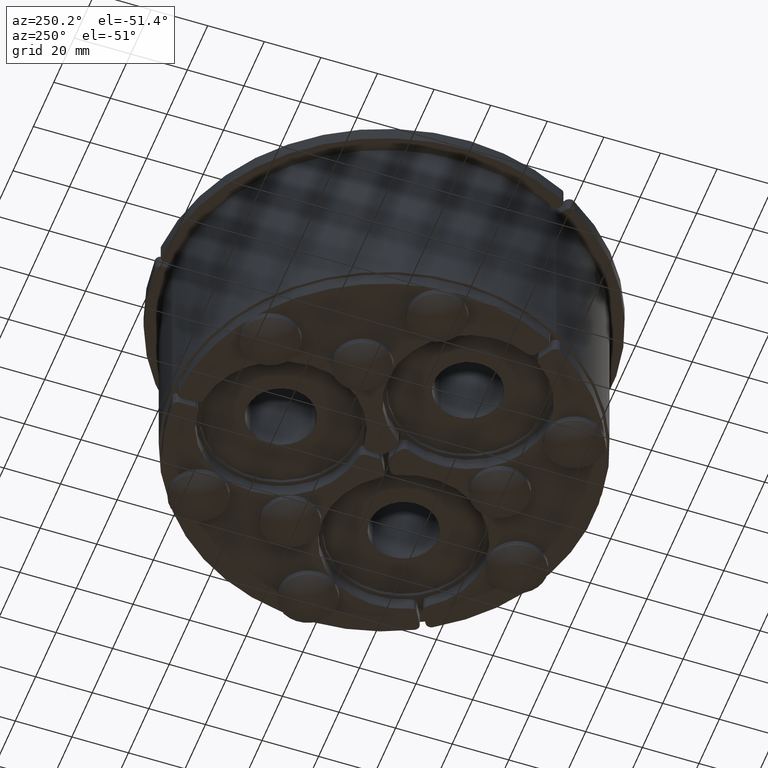
[diagram: clean part render]
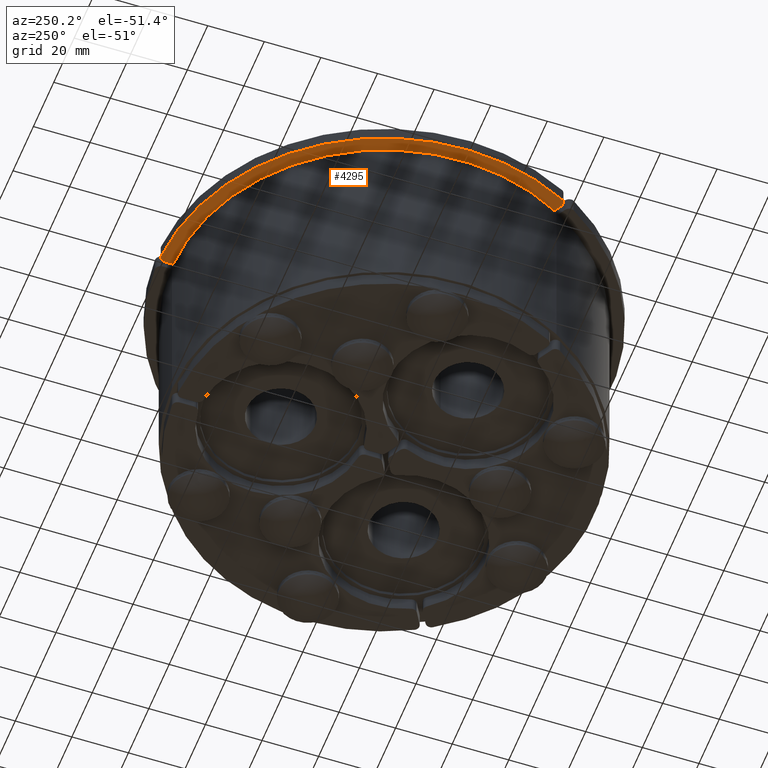
[diagram: same view with one face highlighted and labeled with its STEP entity id]
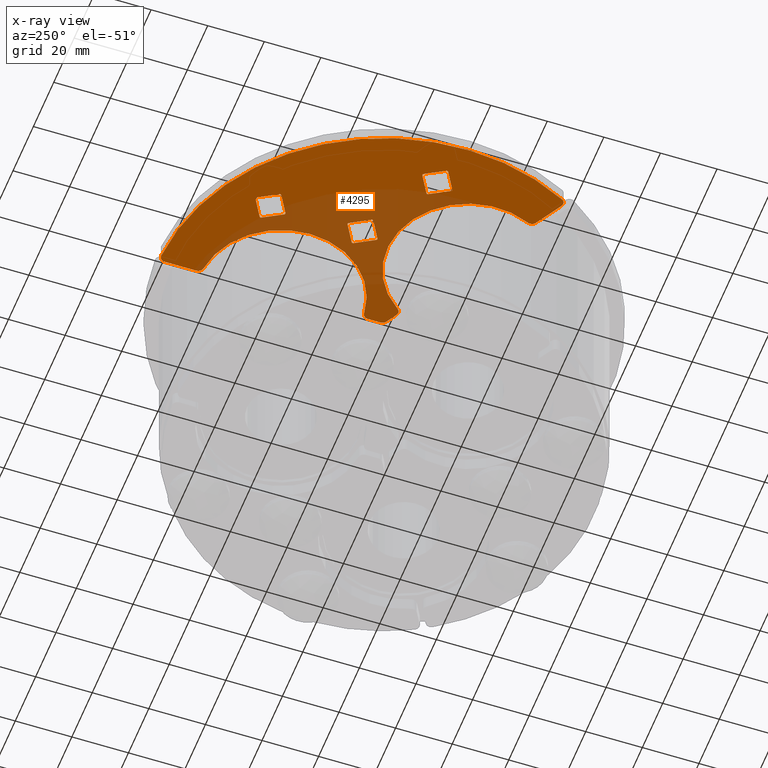
[diagram: x-ray of the same camera — body ghosted, the highlighted face saturated]
A machine part, auxiliary view. The second image highlights one B-rep face of the part: STEP entity #4295.
The next image is the same camera in x-ray: the body ghosted, the highlighted face saturated — about 33% of this face is hidden behind the body in this view.
In plain terms, the highlighted planar face has unit normal (0, 0, 1).
Its self-contained STEP definition (entity closure, byte-faithful):
#3317=CARTESIAN_POINT('',(32.029327736417841,-61.366536972386818,0.0));
#3318=VERTEX_POINT('',#3317);
#3319=CARTESIAN_POINT('',(32.529327736417841,-60.866536972386839,0.0));
#3320=VERTEX_POINT('',#3319);
#3321=CARTESIAN_POINT('',(32.029327736417848,-60.866536972386825,0.0));
#3322=DIRECTION('',(0.0,0.0,1.0));
#3323=DIRECTION('',(0.0,-1.0,0.0));
#3324=AXIS2_PLACEMENT_3D('',#3321,#3322,#3323);
#3325=CIRCLE('',#3324,0.499999999999996);
#3326=EDGE_CURVE('',#3318,#3320,#3325,.T.);
#3359=CARTESIAN_POINT('',(32.529327736417841,-53.166536972386794,0.0));
#3360=VERTEX_POINT('',#3359);
#3361=CARTESIAN_POINT('',(32.529327736417841,-60.866536972386839,0.0));
#3362=DIRECTION('',(0.0,1.0,0.0));
#3363=VECTOR('',#3362,7.700000000000046);
#3364=LINE('',#3361,#3363);
#3365=EDGE_CURVE('',#3320,#3360,#3364,.T.);
#3390=CARTESIAN_POINT('',(32.029327736417841,-52.666536972386808,0.0));
#3391=VERTEX_POINT('',#3390);
#3392=CARTESIAN_POINT('',(32.029327736417848,-53.166536972386794,0.0));
#3393=DIRECTION('',(0.0,0.0,1.0));
#3394=DIRECTION('',(1.0,0.0,0.0));
#3395=AXIS2_PLACEMENT_3D('',#3392,#3393,#3394);
#3396=CIRCLE('',#3395,0.500000000000003);
#3397=EDGE_CURVE('',#3360,#3391,#3396,.T.);
#3423=CARTESIAN_POINT('',(24.329327736417838,-52.666536972386808,0.0));
#3424=VERTEX_POINT('',#3423);
#3425=CARTESIAN_POINT('',(32.029327736417841,-52.666536972386808,0.0));
#3426=DIRECTION('',(-1.0,0.0,0.0));
#3427=VECTOR('',#3426,7.700000000000003);
#3428=LINE('',#3425,#3427);
#3429=EDGE_CURVE('',#3391,#3424,#3428,.T.);
#3454=CARTESIAN_POINT('',(23.829327736417842,-53.166536972386794,0.0));
#3455=VERTEX_POINT('',#3454);
#3456=CARTESIAN_POINT('',(24.329327736417838,-53.166536972386794,0.0));
#3457=DIRECTION('',(0.0,0.0,1.0));
#3458=DIRECTION('',(0.0,1.0,0.0));
#3459=AXIS2_PLACEMENT_3D('',#3456,#3457,#3458);
#3460=CIRCLE('',#3459,0.500000000000003);
#3461=EDGE_CURVE('',#3424,#3455,#3460,.T.);
#3487=CARTESIAN_POINT('',(23.829327736417838,-60.866536972386839,0.0));
#3488=VERTEX_POINT('',#3487);
#3489=CARTESIAN_POINT('',(23.829327736417842,-53.166536972386794,0.0));
#3490=DIRECTION('',(0.0,-1.0,0.0));
#3491=VECTOR('',#3490,7.700000000000038);
#3492=LINE('',#3489,#3491);
#3493=EDGE_CURVE('',#3455,#3488,#3492,.T.);
#3518=CARTESIAN_POINT('',(24.329327736417838,-61.366536972386818,0.0));
#3519=VERTEX_POINT('',#3518);
#3520=CARTESIAN_POINT('',(24.329327736417831,-60.866536972386825,0.0));
#3521=DIRECTION('',(0.0,0.0,1.0));
#3522=DIRECTION('',(-1.0,0.0,0.0));
#3523=AXIS2_PLACEMENT_3D('',#3520,#3521,#3522);
#3524=CIRCLE('',#3523,0.499999999999994);
#3525=EDGE_CURVE('',#3488,#3519,#3524,.T.);
#3551=CARTESIAN_POINT('',(24.329327736417834,-61.366536972386818,0.0));
#3552=DIRECTION('',(1.0,0.0,0.0));
#3553=VECTOR('',#3552,7.700000000000006);
#3554=LINE('',#3551,#3553);
#3555=EDGE_CURVE('',#3519,#3318,#3554,.T.);
#3573=CARTESIAN_POINT('',(3.850000000000003,-45.249999999999993,0.0));
#3574=VERTEX_POINT('',#3573);
#3575=CARTESIAN_POINT('',(4.350000000000004,-44.749999999999986,0.0));
#3576=VERTEX_POINT('',#3575);
#3577=CARTESIAN_POINT('',(3.85000000000001,-44.75,0.0));
#3578=DIRECTION('',(0.0,0.0,1.0));
#3579=DIRECTION('',(0.0,1.0,0.0));
#3580=AXIS2_PLACEMENT_3D('',#3577,#3578,#3579);
#3581=CIRCLE('',#3580,0.499999999999996);
#3582=EDGE_CURVE('',#3574,#3576,#3581,.T.);
#3615=CARTESIAN_POINT('',(4.350000000000002,-37.050000000000004,0.0));
#3616=VERTEX_POINT('',#3615);
#3617=CARTESIAN_POINT('',(4.350000000000004,-44.749999999999986,0.0));
#3618=DIRECTION('',(0.0,1.0,0.0));
#3619=VECTOR('',#3618,7.699999999999982);
#3620=LINE('',#3617,#3619);
#3621=EDGE_CURVE('',#3576,#3616,#3620,.T.);
#3646=CARTESIAN_POINT('',(3.850000000000001,-36.550000000000004,0.0));
#3647=VERTEX_POINT('',#3646);
#3648=CARTESIAN_POINT('',(3.850000000000009,-37.049999999999997,0.0));
#3649=DIRECTION('',(0.0,0.0,1.0));
#3650=DIRECTION('',(-1.0,0.0,0.0));
#3651=AXIS2_PLACEMENT_3D('',#3648,#3649,#3650);
#3652=CIRCLE('',#3651,0.500000000000003);
#3653=EDGE_CURVE('',#3616,#3647,#3652,.T.);
#3679=CARTESIAN_POINT('',(-3.849999999999997,-36.550000000000004,0.0));
#3680=VERTEX_POINT('',#3679);
#3681=CARTESIAN_POINT('',(3.850000000000001,-36.550000000000004,0.0));
#3682=DIRECTION('',(-1.0,0.0,0.0));
#3683=VECTOR('',#3682,7.699999999999998);
#3684=LINE('',#3681,#3683);
#3685=EDGE_CURVE('',#3647,#3680,#3684,.T.);
#3710=CARTESIAN_POINT('',(-4.34999999999999,-37.049999999999997,0.0));
#3711=VERTEX_POINT('',#3710);
#3712=CARTESIAN_POINT('',(-3.849999999999996,-37.049999999999997,0.0));
#3713=DIRECTION('',(0.0,0.0,1.0));
#3714=DIRECTION('',(0.0,-1.0,0.0));
#3715=AXIS2_PLACEMENT_3D('',#3712,#3713,#3714);
#3716=CIRCLE('',#3715,0.500000000000003);
#3717=EDGE_CURVE('',#3680,#3711,#3716,.T.);
#3743=CARTESIAN_POINT('',(-4.349999999999995,-44.749999999999986,0.0));
#3744=VERTEX_POINT('',#3743);
#3745=CARTESIAN_POINT('',(-4.34999999999999,-37.049999999999997,0.0));
#3746=DIRECTION('',(0.0,-1.0,0.0));
#3747=VECTOR('',#3746,7.699999999999996);
#3748=LINE('',#3745,#3747);
#3749=EDGE_CURVE('',#3711,#3744,#3748,.T.);
#3774=CARTESIAN_POINT('',(-3.849999999999994,-45.249999999999993,0.0));
#3775=VERTEX_POINT('',#3774);
#3776=CARTESIAN_POINT('',(-3.850000000000001,-44.75,0.0));
#3777=DIRECTION('',(0.0,0.0,1.0));
#3778=DIRECTION('',(1.0,0.0,0.0));
#3779=AXIS2_PLACEMENT_3D('',#3776,#3777,#3778);
#3780=CIRCLE('',#3779,0.499999999999994);
#3781=EDGE_CURVE('',#3744,#3775,#3780,.T.);
#3807=CARTESIAN_POINT('',(-3.849999999999994,-45.249999999999993,0.0));
#3808=DIRECTION('',(1.0,0.0,0.0));
#3809=VECTOR('',#3808,7.699999999999998);
#3810=LINE('',#3807,#3809);
#3811=EDGE_CURVE('',#3775,#3574,#3810,.T.);
#3829=CARTESIAN_POINT('',(-24.329327736417806,-61.366536972386839,0.0));
#3830=VERTEX_POINT('',#3829);
#3831=CARTESIAN_POINT('',(-23.829327736417802,-60.866536972386825,0.0));
#3832=VERTEX_POINT('',#3831);
#3833=CARTESIAN_POINT('',(-24.329327736417802,-60.866536972386839,0.0));
#3834=DIRECTION('',(0.0,0.0,1.0));
#3835=DIRECTION('',(0.0,-1.0,0.0));
#3836=AXIS2_PLACEMENT_3D('',#3833,#3834,#3835);
#3837=CIRCLE('',#3836,0.499999999999996);
#3838=EDGE_CURVE('',#3830,#3832,#3837,.T.);
#3871=CARTESIAN_POINT('',(-23.829327736417802,-53.166536972386851,0.0));
#3872=VERTEX_POINT('',#3871);
#3873=CARTESIAN_POINT('',(-23.829327736417802,-60.866536972386825,0.0));
#3874=DIRECTION('',(0.0,1.0,0.0));
#3875=VECTOR('',#3874,7.699999999999974);
#3876=LINE('',#3873,#3875);
#3877=EDGE_CURVE('',#3832,#3872,#3876,.T.);
#3902=CARTESIAN_POINT('',(-24.329327736417806,-52.666536972386844,0.0));
#3903=VERTEX_POINT('',#3902);
#3904=CARTESIAN_POINT('',(-24.329327736417802,-53.166536972386844,0.0));
#3905=DIRECTION('',(0.0,0.0,1.0));
#3906=DIRECTION('',(1.0,0.0,0.0));
#3907=AXIS2_PLACEMENT_3D('',#3904,#3905,#3906);
#3908=CIRCLE('',#3907,0.500000000000003);
#3909=EDGE_CURVE('',#3872,#3903,#3908,.T.);
#3935=CARTESIAN_POINT('',(-32.029327736417812,-52.666536972386844,0.0));
#3936=VERTEX_POINT('',#3935);
#3937=CARTESIAN_POINT('',(-24.329327736417802,-52.666536972386844,0.0));
#3938=DIRECTION('',(-1.0,0.0,0.0));
#3939=VECTOR('',#3938,7.70000000000001);
#3940=LINE('',#3937,#3939);
#3941=EDGE_CURVE('',#3903,#3936,#3940,.T.);
#3966=CARTESIAN_POINT('',(-32.529327736417805,-53.166536972386851,0.0));
#3967=VERTEX_POINT('',#3966);
#3968=CARTESIAN_POINT('',(-32.029327736417812,-53.166536972386844,0.0));
#3969=DIRECTION('',(0.0,0.0,1.0));
#3970=DIRECTION('',(0.0,1.0,0.0));
#3971=AXIS2_PLACEMENT_3D('',#3968,#3969,#3970);
#3972=CIRCLE('',#3971,0.500000000000003);
#3973=EDGE_CURVE('',#3936,#3967,#3972,.T.);
#3999=CARTESIAN_POINT('',(-32.529327736417812,-60.866536972386825,0.0));
#4000=VERTEX_POINT('',#3999);
#4001=CARTESIAN_POINT('',(-32.529327736417805,-53.166536972386851,0.0));
#4002=DIRECTION('',(0.0,-1.0,0.0));
#4003=VECTOR('',#4002,7.699999999999982);
#4004=LINE('',#4001,#4003);
#4005=EDGE_CURVE('',#3967,#4000,#4004,.T.);
#4030=CARTESIAN_POINT('',(-32.029327736417812,-61.366536972386839,0.0));
#4031=VERTEX_POINT('',#4030);
#4032=CARTESIAN_POINT('',(-32.029327736417812,-60.866536972386825,0.0));
#4033=DIRECTION('',(0.0,0.0,1.0));
#4034=DIRECTION('',(-1.0,0.0,0.0));
#4035=AXIS2_PLACEMENT_3D('',#4032,#4033,#4034);
#4036=CIRCLE('',#4035,0.499999999999994);
#4037=EDGE_CURVE('',#4000,#4031,#4036,.T.);
#4063=CARTESIAN_POINT('',(-32.029327736417812,-61.366536972386839,0.0));
#4064=DIRECTION('',(1.0,0.0,0.0));
#4065=VECTOR('',#4064,7.70000000000001);
#4066=LINE('',#4063,#4065);
#4067=EDGE_CURVE('',#4031,#3830,#4066,.T.);
#4096=CARTESIAN_POINT('',(67.692307692307651,-42.635096801695511,0.0));
#4097=VERTEX_POINT('',#4096);
#4104=CARTESIAN_POINT('',(66.999999999999957,-39.837168574084252,0.0));
#4105=VERTEX_POINT('',#4104);
#4106=CARTESIAN_POINT('',(65.999999999999957,-41.56921938165312,0.0));
#4107=DIRECTION('',(0.0,0.0,1.0));
#4108=DIRECTION('',(0.970725343394152,0.240192230707627,0.0));
#4109=AXIS2_PLACEMENT_3D('',#4106,#4107,#4108);
#4110=CIRCLE('',#4109,2.0);
#4111=EDGE_CURVE('',#4097,#4105,#4110,.T.);
#4128=CARTESIAN_POINT('',(57.395617261412646,-34.292075614560659,0.0));
#4129=VERTEX_POINT('',#4128);
#4130=CARTESIAN_POINT('',(66.999999999999957,-39.837168574084252,0.0));
#4131=DIRECTION('',(-0.866025403784438,0.500000000000001,0.0));
#4132=VECTOR('',#4131,11.090185919047173);
#4133=LINE('',#4130,#4132);
#4134=EDGE_CURVE('',#4105,#4129,#4133,.T.);
#4153=CARTESIAN_POINT('',(1.064504E-014,-46.334507117830476,0.0));
#4154=DIRECTION('',(0.0,0.0,1.0));
#4155=DIRECTION('',(1.0,0.0,0.0));
#4156=AXIS2_PLACEMENT_3D('',#4153,#4154,#4155);
#4157=PLANE('',#4156);
#4158=ORIENTED_EDGE('',*,*,#4111,.F.);
#4159=CARTESIAN_POINT('',(-67.692307692307622,-42.635096801695546,0.0));
#4160=VERTEX_POINT('',#4159);
#4161=CARTESIAN_POINT('',(0.0,0.0,0.0));
#4162=DIRECTION('',(0.0,0.0,1.0));
#4163=DIRECTION('',(-0.859707742906661,-0.510786253521309,0.0));
#4164=AXIS2_PLACEMENT_3D('',#4161,#4162,#4163);
#4165=CIRCLE('',#4164,80.0);
#4166=EDGE_CURVE('',#4160,#4097,#4165,.T.);
#4167=ORIENTED_EDGE('',*,*,#4166,.F.);
#4168=CARTESIAN_POINT('',(-66.999999999999943,-39.837168574084288,0.0));
#4169=VERTEX_POINT('',#4168);
#4170=CARTESIAN_POINT('',(-65.999999999999943,-41.569219381653156,0.0));
#4171=DIRECTION('',(0.0,0.0,1.0));
#4172=DIRECTION('',(-0.970725343394152,0.240192230707628,0.0));
#4173=AXIS2_PLACEMENT_3D('',#4170,#4171,#4172);
#4174=CIRCLE('',#4173,2.0);
#4175=EDGE_CURVE('',#4169,#4160,#4174,.T.);
#4176=ORIENTED_EDGE('',*,*,#4175,.F.);
#4177=CARTESIAN_POINT('',(-57.395617261412625,-34.29207561456068,0.0));
#4178=VERTEX_POINT('',#4177);
#4179=CARTESIAN_POINT('',(-57.395617261412632,-34.29207561456068,0.0));
#4180=DIRECTION('',(-0.866025403784438,-0.500000000000002,0.0));
#4181=VECTOR('',#4180,11.090185919047173);
#4182=LINE('',#4179,#4181);
#4183=EDGE_CURVE('',#4178,#4169,#4182,.T.);
#4184=ORIENTED_EDGE('',*,*,#4183,.F.);
#4185=CARTESIAN_POINT('',(-54.770326112345046,-34.85860993543254,0.0));
#4186=VERTEX_POINT('',#4185);
#4187=CARTESIAN_POINT('',(-56.395617261412625,-36.024126422129555,0.0));
#4188=DIRECTION('',(0.0,0.0,1.0));
#4189=DIRECTION('',(0.210942847388217,0.97749839648756,0.0));
#4190=AXIS2_PLACEMENT_3D('',#4187,#4188,#4189);
#4191=CIRCLE('',#4190,2.0);
#4192=EDGE_CURVE('',#4186,#4178,#4191,.T.);
#4193=ORIENTED_EDGE('',*,*,#4192,.F.);
#4194=CARTESIAN_POINT('',(-5.646249675394222,-6.49681118086713,0.0));
#4195=VERTEX_POINT('',#4194);
#4196=CARTESIAN_POINT('',(-31.609927238131931,-18.250000000000011,0.0));
#4197=DIRECTION('',(0.0,0.0,-1.0));
#4198=DIRECTION('',(0.847948277210499,0.530078974470547,0.0));
#4199=AXIS2_PLACEMENT_3D('',#4196,#4197,#4198);
#4200=CIRCLE('',#4199,28.499999999999996);
#4201=EDGE_CURVE('',#4195,#4186,#4200,.T.);
#4202=ORIENTED_EDGE('',*,*,#4201,.F.);
#4203=CARTESIAN_POINT('',(-4.824237214851229,-3.939975193008227,0.0));
#4204=VERTEX_POINT('',#4203);
#4205=CARTESIAN_POINT('',(-3.824237214851225,-5.672026000577104,0.0));
#4206=DIRECTION('',(0.0,0.0,1.0));
#4207=DIRECTION('',(-0.952009867210891,0.306067333658955,0.0));
#4208=AXIS2_PLACEMENT_3D('',#4205,#4206,#4207);
#4209=CIRCLE('',#4208,2.0);
#4210=EDGE_CURVE('',#4204,#4195,#4209,.T.);
#4211=ORIENTED_EDGE('',*,*,#4210,.F.);
#4212=CARTESIAN_POINT('',(-1.000000000000004,-1.73205080756888,0.0));
#4213=VERTEX_POINT('',#4212);
#4214=CARTESIAN_POINT('',(-1.000000000000004,-1.732050807568881,0.0));
#4215=DIRECTION('',(-0.866025403784438,-0.500000000000001,0.0));
#4216=VECTOR('',#4215,4.415848770878682);
#4217=LINE('',#4214,#4216);
#4218=EDGE_CURVE('',#4213,#4204,#4217,.T.);
#4219=ORIENTED_EDGE('',*,*,#4218,.F.);
#4220=CARTESIAN_POINT('',(1.000000000000001,-1.732050807568879,0.0));
#4221=VERTEX_POINT('',#4220);
#4222=CARTESIAN_POINT('',(-1.110223E-015,-3.464101615137756,0.0));
#4223=DIRECTION('',(0.0,0.0,1.0));
#4224=DIRECTION('',(0.0,1.0,0.0));
#4225=AXIS2_PLACEMENT_3D('',#4222,#4223,#4224);
#4226=CIRCLE('',#4225,2.0);
#4227=EDGE_CURVE('',#4221,#4213,#4226,.T.);
#4228=ORIENTED_EDGE('',*,*,#4227,.F.);
#4229=CARTESIAN_POINT('',(4.824237214851212,-3.939975193008217,0.0));
#4230=VERTEX_POINT('',#4229);
#4231=CARTESIAN_POINT('',(4.824237214851211,-3.939975193008217,0.0));
#4232=DIRECTION('',(-0.866025403784438,0.500000000000001,0.0));
#4233=VECTOR('',#4232,4.415848770878665);
#4234=LINE('',#4231,#4233);
#4235=EDGE_CURVE('',#4230,#4221,#4234,.T.);
#4236=ORIENTED_EDGE('',*,*,#4235,.F.);
#4237=CARTESIAN_POINT('',(5.646249675394208,-6.496811180867114,0.0));
#4238=VERTEX_POINT('',#4237);
#4239=CARTESIAN_POINT('',(3.824237214851212,-5.672026000577088,0.0));
#4240=DIRECTION('',(0.0,0.0,1.0));
#4241=DIRECTION('',(0.952009867210891,0.306067333658954,0.0));
#4242=AXIS2_PLACEMENT_3D('',#4239,#4240,#4241);
#4243=CIRCLE('',#4242,2.0);
#4244=EDGE_CURVE('',#4238,#4230,#4243,.T.);
#4245=ORIENTED_EDGE('',*,*,#4244,.F.);
#4246=CARTESIAN_POINT('',(54.77032611234506,-34.858609935432526,0.0));
#4247=VERTEX_POINT('',#4246);
#4248=CARTESIAN_POINT('',(31.609927238131931,-18.25,0.0));
#4249=DIRECTION('',(0.0,0.0,-1.0));
#4250=DIRECTION('',(0.883035996508745,-0.46930526192427,0.0));
#4251=AXIS2_PLACEMENT_3D('',#4248,#4249,#4250);
#4252=CIRCLE('',#4251,28.500000000000007);
#4253=EDGE_CURVE('',#4247,#4238,#4252,.T.);
#4254=ORIENTED_EDGE('',*,*,#4253,.F.);
#4255=CARTESIAN_POINT('',(56.395617261412639,-36.024126422129541,0.0));
#4256=DIRECTION('',(0.0,0.0,1.0));
#4257=DIRECTION('',(-0.210942847388217,0.97749839648756,0.0));
#4258=AXIS2_PLACEMENT_3D('',#4255,#4256,#4257);
#4259=CIRCLE('',#4258,2.0);
#4260=EDGE_CURVE('',#4129,#4247,#4259,.T.);
#4261=ORIENTED_EDGE('',*,*,#4260,.F.);
#4262=ORIENTED_EDGE('',*,*,#4134,.F.);
#4263=EDGE_LOOP('',(#4158,#4167,#4176,#4184,#4193,#4202,#4211,#4219,#4228,#4236,#4245,#4254,#4261,#4262));
#4264=FACE_OUTER_BOUND('',#4263,.T.);
#4265=ORIENTED_EDGE('',*,*,#3461,.T.);
#4266=ORIENTED_EDGE('',*,*,#3493,.T.);
#4267=ORIENTED_EDGE('',*,*,#3525,.T.);
#4268=ORIENTED_EDGE('',*,*,#3555,.T.);
#4269=ORIENTED_EDGE('',*,*,#3326,.T.);
#4270=ORIENTED_EDGE('',*,*,#3365,.T.);
#4271=ORIENTED_EDGE('',*,*,#3397,.T.);
#4272=ORIENTED_EDGE('',*,*,#3429,.T.);
#4273=EDGE_LOOP('',(#4265,#4266,#4267,#4268,#4269,#4270,#4271,#4272));
#4274=FACE_BOUND('',#4273,.T.);
#4275=ORIENTED_EDGE('',*,*,#3717,.T.);
#4276=ORIENTED_EDGE('',*,*,#3749,.T.);
#4277=ORIENTED_EDGE('',*,*,#3781,.T.);
#4278=ORIENTED_EDGE('',*,*,#3811,.T.);
#4279=ORIENTED_EDGE('',*,*,#3582,.T.);
#4280=ORIENTED_EDGE('',*,*,#3621,.T.);
#4281=ORIENTED_EDGE('',*,*,#3653,.T.);
#4282=ORIENTED_EDGE('',*,*,#3685,.T.);
#4283=EDGE_LOOP('',(#4275,#4276,#4277,#4278,#4279,#4280,#4281,#4282));
#4284=FACE_BOUND('',#4283,.T.);
#4285=ORIENTED_EDGE('',*,*,#3973,.T.);
#4286=ORIENTED_EDGE('',*,*,#4005,.T.);
#4287=ORIENTED_EDGE('',*,*,#4037,.T.);
#4288=ORIENTED_EDGE('',*,*,#4067,.T.);
#4289=ORIENTED_EDGE('',*,*,#3838,.T.);
#4290=ORIENTED_EDGE('',*,*,#3877,.T.);
#4291=ORIENTED_EDGE('',*,*,#3909,.T.);
#4292=ORIENTED_EDGE('',*,*,#3941,.T.);
#4293=EDGE_LOOP('',(#4285,#4286,#4287,#4288,#4289,#4290,#4291,#4292));
#4294=FACE_BOUND('',#4293,.T.);
#4295=ADVANCED_FACE('',(#4264,#4274,#4284,#4294),#4157,.F.);